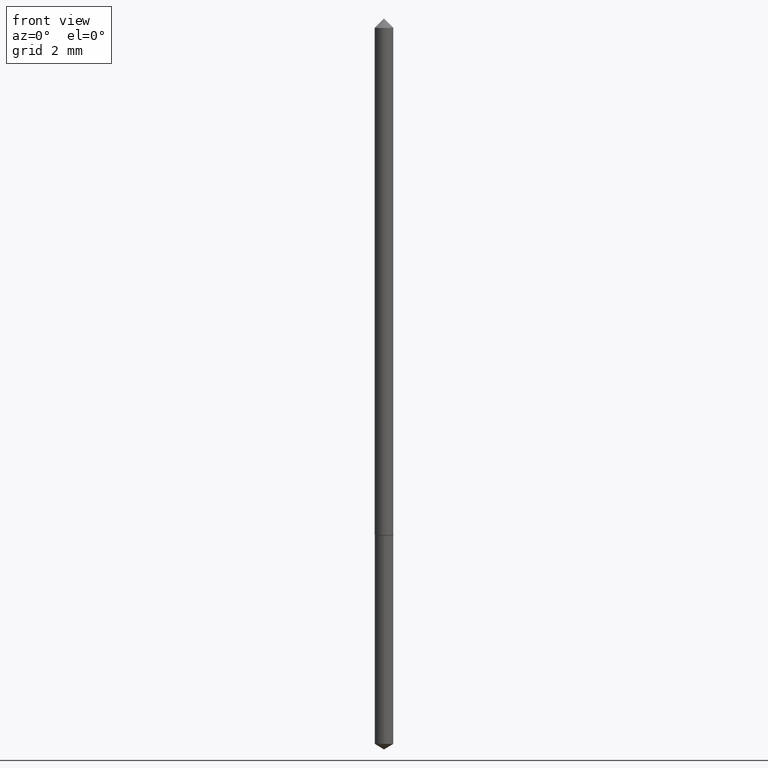
[diagram: clean part render]
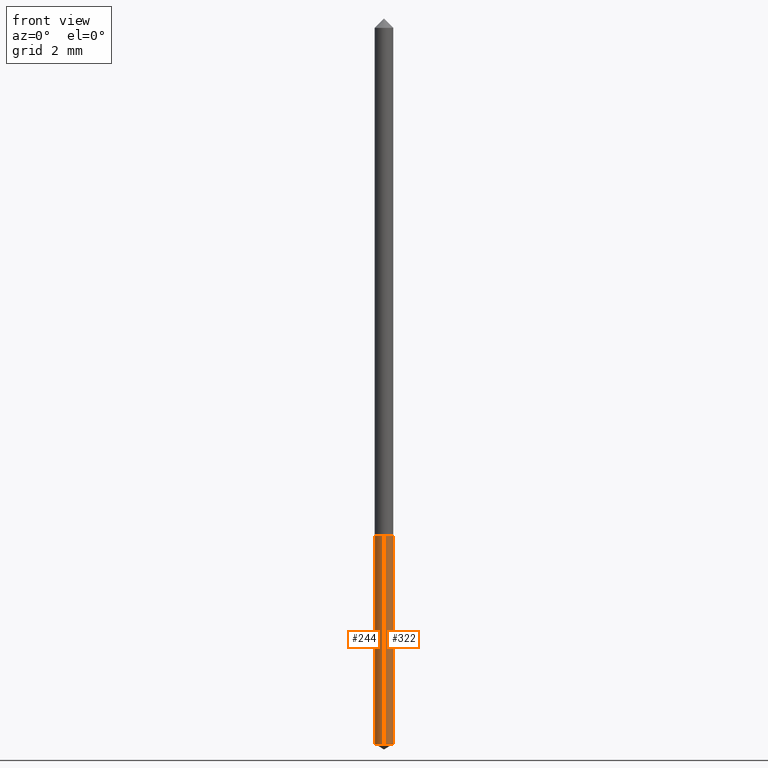
[diagram: same view with one multi-face feature highlighted, each face labeled with its STEP entity id]
A machine part, front view. The highlighted faces form ONE feature: a constant-radius fillet chain: 2 tangent blend faces with common blend radius 0.3175 mm. The faces share edges in the B-rep.
Their STEP definitions:
[1] entity #322 (Cylinder):
#4 = CARTESIAN_POINT ( 'NONE',  ( -8.728703347106090499E-17, -0.01250000000000249002, -0.7125000000000000222 ) ) ;
#7 = CARTESIAN_POINT ( 'NONE',  ( 1.742396524406909713E-29, -2.487680453925741193E-15, -0.7125000000000000222 ) ) ;
#9 = DIRECTION ( 'NONE',  ( -2.445398323987981261E-29, 3.491582273361069499E-15, 1.000000000000000000 ) ) ;
#19 = DIRECTION ( 'NONE',  ( -2.445398323987980980E-29, 3.491582273361069499E-15, 1.000000000000000000 ) ) ;
#20 = ORIENTED_EDGE ( 'NONE', *, *, #314, .F. ) ;
#25 = AXIS2_PLACEMENT_3D ( 'NONE', #108, #142, #55 ) ;
#31 = EDGE_CURVE ( 'NONE', #86, #172, #32, .T. ) ;
#32 = CIRCLE ( 'NONE', #25, 0.01250000000000000069 ) ;
#43 = ORIENTED_EDGE ( 'NONE', *, *, #31, .T. ) ;
#51 = AXIS2_PLACEMENT_3D ( 'NONE', #128, #236, #269 ) ;
#55 = DIRECTION ( 'NONE',  ( -6.982962677686265133E-15, -1.000000000000000000, 0.000000000000000000 ) ) ;
#59 = EDGE_CURVE ( 'NONE', #172, #281, #117, .T. ) ;
#61 = CARTESIAN_POINT ( 'NONE',  ( -8.728703347106090499E-17, -0.01250000000000249002, -0.7125000000000000222 ) ) ;
#69 = DIRECTION ( 'NONE',  ( -6.982962677686265133E-15, -1.000000000000000000, 0.000000000000000000 ) ) ;
#86 = VERTEX_POINT ( 'NONE', #351 ) ;
#108 = CARTESIAN_POINT ( 'NONE',  ( 2.427081748169450084E-29, -3.465285928940082043E-15, -0.9924892422621556243 ) ) ;
#117 = LINE ( 'NONE', #247, #291 ) ;
#128 = CARTESIAN_POINT ( 'NONE',  ( 1.742396524406909713E-29, -2.487680453925741193E-15, -0.7125000000000000222 ) ) ;
#142 = DIRECTION ( 'NONE',  ( -2.445398323987981261E-29, 3.491582273361069499E-15, 1.000000000000000000 ) ) ;
#172 = VERTEX_POINT ( 'NONE', #273 ) ;
#174 = LINE ( 'NONE', #4, #348 ) ;
#184 = ORIENTED_EDGE ( 'NONE', *, *, #339, .F. ) ;
#193 = AXIS2_PLACEMENT_3D ( 'NONE', #7, #9, #69 ) ;
#206 = DIRECTION ( 'NONE',  ( -2.445398323987980980E-29, 3.491582273361069499E-15, 1.000000000000000000 ) ) ;
#212 = CYLINDRICAL_SURFACE ( 'NONE', #51, 0.01250000000000000069 ) ;
#236 = DIRECTION ( 'NONE',  ( -2.445398323987981261E-29, 3.491582273361069499E-15, 1.000000000000000000 ) ) ;
#247 = CARTESIAN_POINT ( 'NONE',  ( 8.881784197002994473E-17, 0.01249999999999751310, -0.7125000000000000222 ) ) ;
#254 = CIRCLE ( 'NONE', #193, 0.01250000000000000069 ) ;
#265 = ORIENTED_EDGE ( 'NONE', *, *, #59, .T. ) ;
#269 = DIRECTION ( 'NONE',  ( -6.982962677686265133E-15, -1.000000000000000000, 0.000000000000000000 ) ) ;
#273 = CARTESIAN_POINT ( 'NONE',  ( 8.881784197003679796E-17, 0.01249999999999653645, -0.9924892422621556243 ) ) ;
#281 = VERTEX_POINT ( 'NONE', #289 ) ;
#289 = CARTESIAN_POINT ( 'NONE',  ( 8.881784197003682261E-17, 0.01249999999999751310, -0.7125000000000000222 ) ) ;
#291 = VECTOR ( 'NONE', #19, 39.37007874015748143 ) ;
#295 = FACE_OUTER_BOUND ( 'NONE', #350, .T. ) ;
#302 = VERTEX_POINT ( 'NONE', #61 ) ;
#314 = EDGE_CURVE ( 'NONE', #86, #302, #174, .T. ) ;
#322 = ADVANCED_FACE ( 'NONE', ( #295 ), #212, .T. ) ;
#339 = EDGE_CURVE ( 'NONE', #302, #281, #254, .T. ) ;
#348 = VECTOR ( 'NONE', #206, 39.37007874015748143 ) ;
#350 = EDGE_LOOP ( 'NONE', ( #43, #265, #184, #20 ) ) ;
#351 = CARTESIAN_POINT ( 'NONE',  ( -8.728703347105407641E-17, -0.01250000000000346667, -0.9924892422621556243 ) ) ;
[2] entity #244 (Cylinder):
#4 = CARTESIAN_POINT ( 'NONE',  ( -8.728703347106090499E-17, -0.01250000000000249002, -0.7125000000000000222 ) ) ;
#19 = DIRECTION ( 'NONE',  ( -2.445398323987980980E-29, 3.491582273361069499E-15, 1.000000000000000000 ) ) ;
#26 = AXIS2_PLACEMENT_3D ( 'NONE', #195, #316, #166 ) ;
#35 = EDGE_CURVE ( 'NONE', #172, #86, #248, .T. ) ;
#59 = EDGE_CURVE ( 'NONE', #172, #281, #117, .T. ) ;
#61 = CARTESIAN_POINT ( 'NONE',  ( -8.728703347106090499E-17, -0.01250000000000249002, -0.7125000000000000222 ) ) ;
#86 = VERTEX_POINT ( 'NONE', #351 ) ;
#95 = EDGE_LOOP ( 'NONE', ( #192, #186, #327, #355 ) ) ;
#117 = LINE ( 'NONE', #247, #291 ) ;
#120 = CYLINDRICAL_SURFACE ( 'NONE', #226, 0.01250000000000000069 ) ;
#122 = DIRECTION ( 'NONE',  ( -6.982962677686265133E-15, -1.000000000000000000, 0.000000000000000000 ) ) ;
#143 = CARTESIAN_POINT ( 'NONE',  ( 1.742396524406909713E-29, -2.487680453925741193E-15, -0.7125000000000000222 ) ) ;
#166 = DIRECTION ( 'NONE',  ( -6.982962677686265133E-15, -1.000000000000000000, 0.000000000000000000 ) ) ;
#167 = DIRECTION ( 'NONE',  ( -6.982962677686265133E-15, -1.000000000000000000, 0.000000000000000000 ) ) ;
#172 = VERTEX_POINT ( 'NONE', #273 ) ;
#174 = LINE ( 'NONE', #4, #348 ) ;
#186 = ORIENTED_EDGE ( 'NONE', *, *, #35, .T. ) ;
#192 = ORIENTED_EDGE ( 'NONE', *, *, #59, .F. ) ;
#195 = CARTESIAN_POINT ( 'NONE',  ( 1.742396524406909713E-29, -2.487680453925741193E-15, -0.7125000000000000222 ) ) ;
#206 = DIRECTION ( 'NONE',  ( -2.445398323987980980E-29, 3.491582273361069499E-15, 1.000000000000000000 ) ) ;
#220 = EDGE_CURVE ( 'NONE', #281, #302, #301, .T. ) ;
#226 = AXIS2_PLACEMENT_3D ( 'NONE', #143, #362, #122 ) ;
#227 = CARTESIAN_POINT ( 'NONE',  ( 2.427081748169450084E-29, -3.465285928940082043E-15, -0.9924892422621556243 ) ) ;
#244 = ADVANCED_FACE ( 'NONE', ( #257 ), #120, .T. ) ;
#247 = CARTESIAN_POINT ( 'NONE',  ( 8.881784197002994473E-17, 0.01249999999999751310, -0.7125000000000000222 ) ) ;
#248 = CIRCLE ( 'NONE', #278, 0.01250000000000000069 ) ;
#257 = FACE_OUTER_BOUND ( 'NONE', #95, .T. ) ;
#273 = CARTESIAN_POINT ( 'NONE',  ( 8.881784197003679796E-17, 0.01249999999999653645, -0.9924892422621556243 ) ) ;
#277 = DIRECTION ( 'NONE',  ( -2.445398323987981261E-29, 3.491582273361069499E-15, 1.000000000000000000 ) ) ;
#278 = AXIS2_PLACEMENT_3D ( 'NONE', #227, #277, #167 ) ;
#281 = VERTEX_POINT ( 'NONE', #289 ) ;
#289 = CARTESIAN_POINT ( 'NONE',  ( 8.881784197003682261E-17, 0.01249999999999751310, -0.7125000000000000222 ) ) ;
#291 = VECTOR ( 'NONE', #19, 39.37007874015748143 ) ;
#301 = CIRCLE ( 'NONE', #26, 0.01250000000000000069 ) ;
#302 = VERTEX_POINT ( 'NONE', #61 ) ;
#314 = EDGE_CURVE ( 'NONE', #86, #302, #174, .T. ) ;
#316 = DIRECTION ( 'NONE',  ( -2.445398323987981261E-29, 3.491582273361069499E-15, 1.000000000000000000 ) ) ;
#327 = ORIENTED_EDGE ( 'NONE', *, *, #314, .T. ) ;
#348 = VECTOR ( 'NONE', #206, 39.37007874015748143 ) ;
#351 = CARTESIAN_POINT ( 'NONE',  ( -8.728703347105407641E-17, -0.01250000000000346667, -0.9924892422621556243 ) ) ;
#355 = ORIENTED_EDGE ( 'NONE', *, *, #220, .F. ) ;
#362 = DIRECTION ( 'NONE',  ( -2.445398323987981261E-29, 3.491582273361069499E-15, 1.000000000000000000 ) ) ;